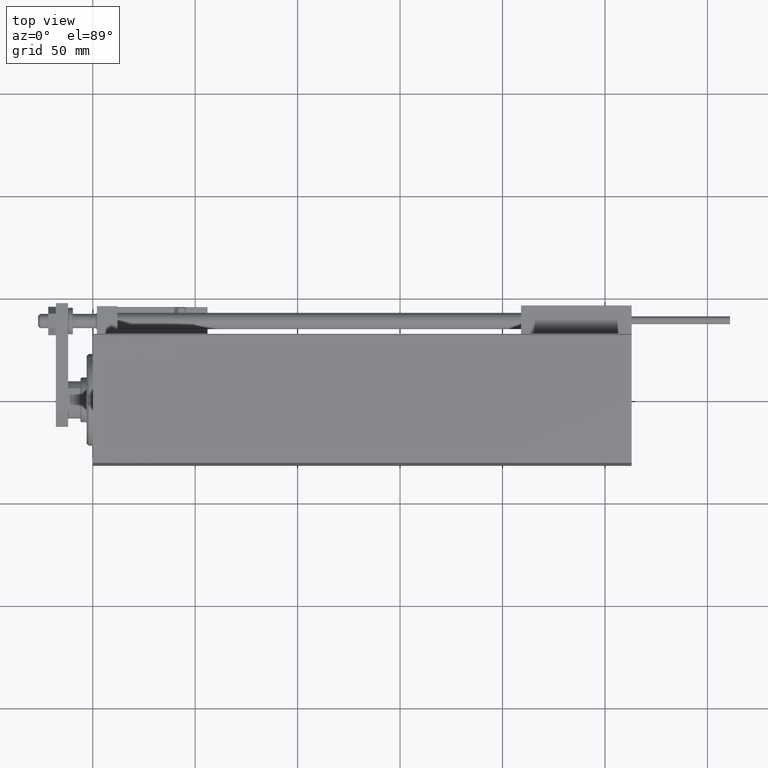
[diagram: clean part render]
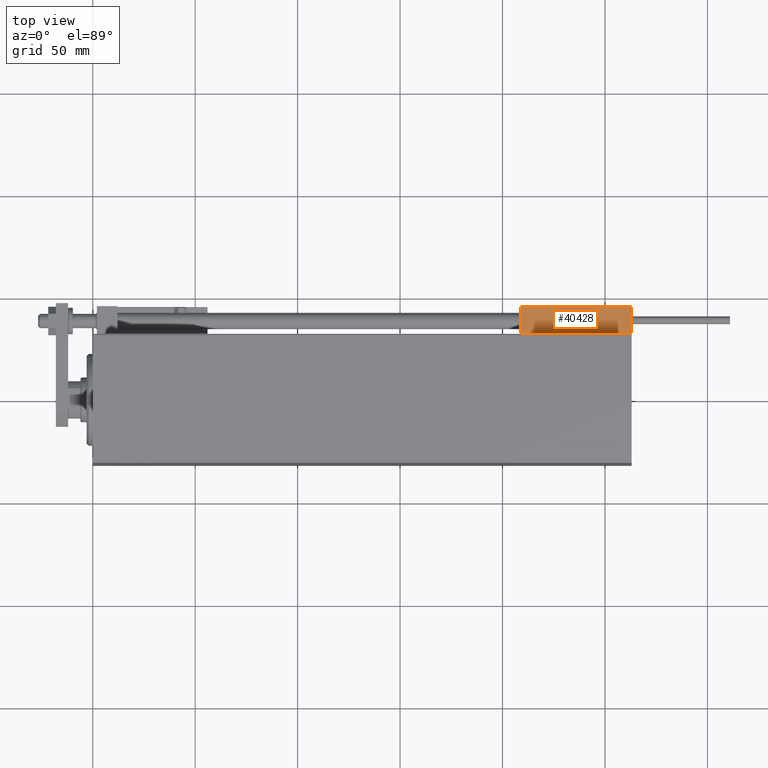
[diagram: same view with one face highlighted and labeled with its STEP entity id]
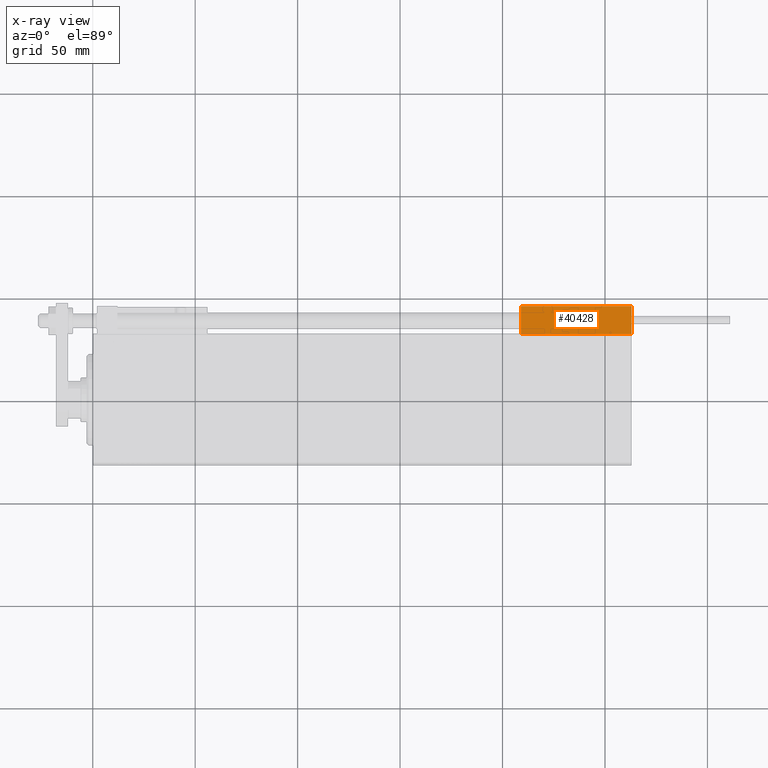
[diagram: x-ray of the same camera — body ghosted, the highlighted face saturated]
A machine part, top view. The second image highlights one B-rep face of the part: STEP entity #40428.
The next image is the same camera in x-ray: the body ghosted, the highlighted face saturated — about 0% of this face is hidden behind the body in this view.
In plain terms, the highlighted planar face has unit normal (-0, -0, -1).
Its self-contained STEP definition (entity closure, byte-faithful):
#596 = VECTOR ( 'NONE', #26485, 1000.000000000000000 ) ;
#3407 = VERTEX_POINT ( 'NONE', #49234 ) ;
#4243 = EDGE_CURVE ( 'NONE', #3407, #33244, #6780, .T. ) ;
#5102 = CARTESIAN_POINT ( 'NONE',  ( 27.00000000000006395, 20.00000000000001776, 13.70000000000000107 ) ) ;
#6780 = LINE ( 'NONE', #37671, #596 ) ;
#9481 = CARTESIAN_POINT ( 'NONE',  ( -26.99999999999993605, 20.00000000000002132, 0.000000000000000000 ) ) ;
#9691 = DIRECTION ( 'NONE',  ( -6.424901762877063495E-17, -1.000000000000000000, 0.000000000000000000 ) ) ;
#10049 = CARTESIAN_POINT ( 'NONE',  ( -26.99999999999993605, 20.00000000000002132, 13.70000000000000107 ) ) ;
#11703 = VERTEX_POINT ( 'NONE', #10049 ) ;
#16354 = AXIS2_PLACEMENT_3D ( 'NONE', #47683, #9691, #21071 ) ;
#16425 = VECTOR ( 'NONE', #45499, 1000.000000000000000 ) ;
#17842 = EDGE_LOOP ( 'NONE', ( #24241, #19207, #38873, #46794 ) ) ;
#19207 = ORIENTED_EDGE ( 'NONE', *, *, #44240, .T. ) ;
#21071 = DIRECTION ( 'NONE',  ( 1.000000000000000000, -6.424901762877063495E-17, 0.000000000000000000 ) ) ;
#21209 = VECTOR ( 'NONE', #28258, 1000.000000000000000 ) ;
#21524 = LINE ( 'NONE', #5102, #29310 ) ;
#22002 = EDGE_CURVE ( 'NONE', #11703, #33244, #42433, .T. ) ;
#24241 = ORIENTED_EDGE ( 'NONE', *, *, #22002, .F. ) ;
#26485 = DIRECTION ( 'NONE',  ( -1.000000000000000000, 6.424901762877062263E-17, 0.000000000000000000 ) ) ;
#28258 = DIRECTION ( 'NONE',  ( -0.000000000000000000, -0.000000000000000000, -1.000000000000000000 ) ) ;
#28679 = FACE_OUTER_BOUND ( 'NONE', #17842, .T. ) ;
#29310 = VECTOR ( 'NONE', #47390, 1000.000000000000000 ) ;
#33244 = VERTEX_POINT ( 'NONE', #9481 ) ;
#35633 = CARTESIAN_POINT ( 'NONE',  ( 27.00000000000006395, 20.00000000000001776, 14.00000000000000000 ) ) ;
#37671 = CARTESIAN_POINT ( 'NONE',  ( 27.00000000000006395, 20.00000000000001776, 0.000000000000000000 ) ) ;
#38873 = ORIENTED_EDGE ( 'NONE', *, *, #44585, .T. ) ;
#40417 = LINE ( 'NONE', #35633, #21209 ) ;
#40428 = ADVANCED_FACE ( 'NONE', ( #28679 ), #44890, .F. ) ;
#42433 = LINE ( 'NONE', #45239, #16425 ) ;
#44240 = EDGE_CURVE ( 'NONE', #11703, #49911, #21524, .T. ) ;
#44350 = CARTESIAN_POINT ( 'NONE',  ( 27.00000000000006395, 20.00000000000001776, 13.70000000000000107 ) ) ;
#44585 = EDGE_CURVE ( 'NONE', #49911, #3407, #40417, .T. ) ;
#44890 = PLANE ( 'NONE',  #16354 ) ;
#45239 = CARTESIAN_POINT ( 'NONE',  ( -26.99999999999993605, 20.00000000000002132, 14.00000000000000000 ) ) ;
#45499 = DIRECTION ( 'NONE',  ( -0.000000000000000000, -0.000000000000000000, -1.000000000000000000 ) ) ;
#46794 = ORIENTED_EDGE ( 'NONE', *, *, #4243, .T. ) ;
#47390 = DIRECTION ( 'NONE',  ( 1.000000000000000000, -6.424901762877063495E-17, -0.000000000000000000 ) ) ;
#47683 = CARTESIAN_POINT ( 'NONE',  ( 27.00000000000006395, 20.00000000000001776, 14.00000000000000000 ) ) ;
#49234 = CARTESIAN_POINT ( 'NONE',  ( 27.00000000000006395, 20.00000000000001776, 0.000000000000000000 ) ) ;
#49911 = VERTEX_POINT ( 'NONE', #44350 ) ;